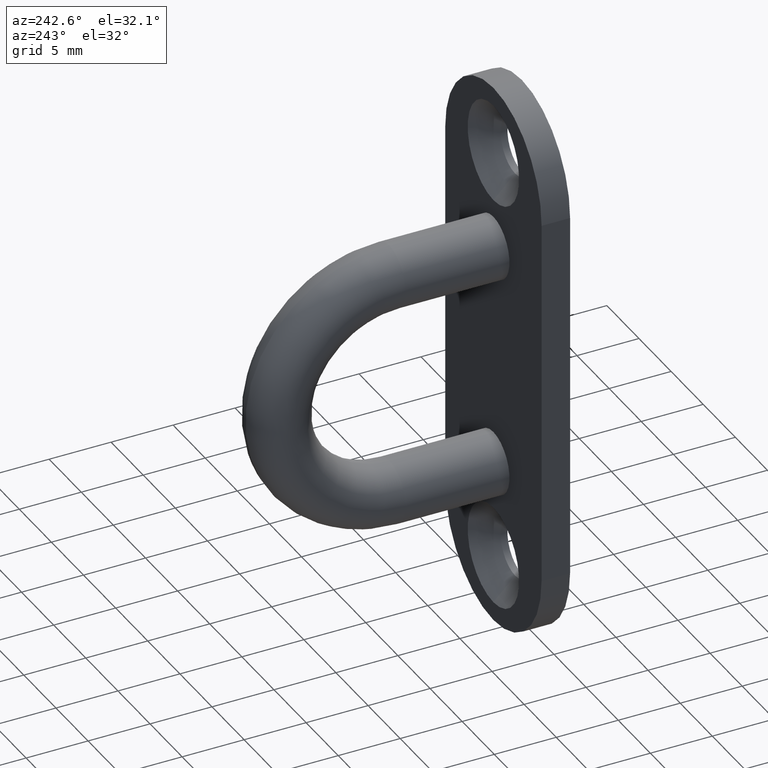
[diagram: clean part render]
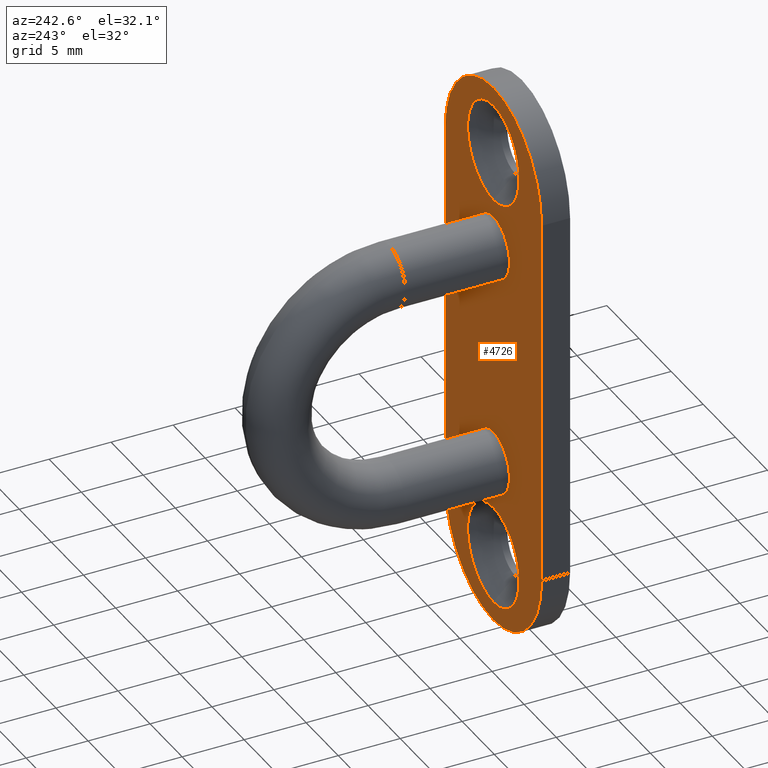
[diagram: same view with one face highlighted and labeled with its STEP entity id]
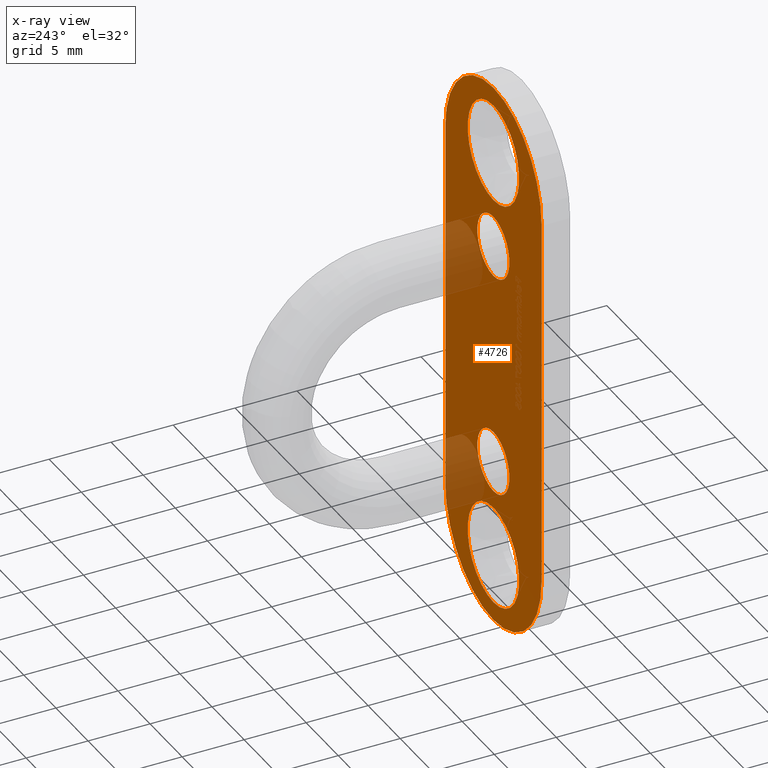
[diagram: x-ray of the same camera — body ghosted, the highlighted face saturated]
A machine part, auxiliary view. The second image highlights one B-rep face of the part: STEP entity #4726.
The next image is the same camera in x-ray: the body ghosted, the highlighted face saturated — about 12% of this face is hidden behind the body in this view.
In plain terms, the highlighted planar face has unit normal (0, 1, 0).
Its self-contained STEP definition (entity closure, byte-faithful):
#55 = DIRECTION ( 'NONE',  ( 0.0000000000000000000, 0.0000000000000000000, 1.000000000000000000 ) ) ;
#189 = VERTEX_POINT ( 'NONE', #12354 ) ;
#214 = CIRCLE ( 'NONE', #2762, 2.500000000000000400 ) ;
#291 = CARTESIAN_POINT ( 'NONE',  ( 6.000769315822030900E-015, 2.299999999999999800, -17.00000000000000000 ) ) ;
#440 = EDGE_CURVE ( 'NONE', #4568, #8157, #9463, .T. ) ;
#457 = ORIENTED_EDGE ( 'NONE', *, *, #6799, .F. ) ;
#523 = VERTEX_POINT ( 'NONE', #9276 ) ;
#596 = CARTESIAN_POINT ( 'NONE',  ( 6.000769315822030900E-015, 2.299999999999999800, -13.00000000000000500 ) ) ;
#644 = AXIS2_PLACEMENT_3D ( 'NONE', #291, #3449, #9608 ) ;
#768 = ORIENTED_EDGE ( 'NONE', *, *, #6832, .T. ) ;
#860 = DIRECTION ( 'NONE',  ( -0.0000000000000000000, -1.000000000000000000, -0.0000000000000000000 ) ) ;
#918 = VERTEX_POINT ( 'NONE', #11177 ) ;
#1264 = DIRECTION ( 'NONE',  ( 0.0000000000000000000, 0.0000000000000000000, 1.000000000000000000 ) ) ;
#1303 = CARTESIAN_POINT ( 'NONE',  ( 0.0000000000000000000, 2.299999999999999800, 9.099999999999999600 ) ) ;
#2199 = EDGE_CURVE ( 'NONE', #523, #9841, #4297, .T. ) ;
#2221 = CARTESIAN_POINT ( 'NONE',  ( 6.490628035480972300E-015, 2.299999999999999800, 13.00000000000000500 ) ) ;
#2252 = CARTESIAN_POINT ( 'NONE',  ( 6.000769315822030900E-015, 2.299999999999999800, 20.99999999999999600 ) ) ;
#2261 = DIRECTION ( 'NONE',  ( 0.0000000000000000000, 0.0000000000000000000, 1.000000000000000000 ) ) ;
#2480 = FACE_BOUND ( 'NONE', #3349, .T. ) ;
#2498 = LINE ( 'NONE', #2669, #13227 ) ;
#2547 = EDGE_CURVE ( 'NONE', #10538, #12911, #10152, .T. ) ;
#2556 = CARTESIAN_POINT ( 'NONE',  ( 6.000769315822030900E-015, 2.299999999999999800, 17.00000000000000000 ) ) ;
#2669 = CARTESIAN_POINT ( 'NONE',  ( -7.500000000000005300, 2.299999999999999800, -15.00000000000000000 ) ) ;
#2677 = CARTESIAN_POINT ( 'NONE',  ( 6.000769315822030900E-015, 2.299999999999999800, -17.00000000000000000 ) ) ;
#2762 = AXIS2_PLACEMENT_3D ( 'NONE', #6742, #8918, #3643 ) ;
#3094 = CIRCLE ( 'NONE', #5917, 7.500000000000010700 ) ;
#3114 = DIRECTION ( 'NONE',  ( 0.0000000000000000000, 1.000000000000000000, 0.0000000000000000000 ) ) ;
#3124 = CARTESIAN_POINT ( 'NONE',  ( -7.500000000000005300, 2.299999999999999800, -15.00000000000000000 ) ) ;
#3212 = CARTESIAN_POINT ( 'NONE',  ( -5.627543624653317000E-015, 2.299999999999999800, 15.00000000000000000 ) ) ;
#3239 = DIRECTION ( 'NONE',  ( 0.0000000000000000000, 1.000000000000000000, 0.0000000000000000000 ) ) ;
#3252 = CIRCLE ( 'NONE', #8418, 3.999999999999996400 ) ;
#3349 = EDGE_LOOP ( 'NONE', ( #11212, #11558 ) ) ;
#3414 = ORIENTED_EDGE ( 'NONE', *, *, #3934, .T. ) ;
#3449 = DIRECTION ( 'NONE',  ( -0.0000000000000000000, -1.000000000000000000, -0.0000000000000000000 ) ) ;
#3526 = AXIS2_PLACEMENT_3D ( 'NONE', #2556, #6640, #10821 ) ;
#3643 = DIRECTION ( 'NONE',  ( 0.0000000000000000000, 0.0000000000000000000, 1.000000000000000000 ) ) ;
#3830 = CARTESIAN_POINT ( 'NONE',  ( 7.500000000000016900, 2.299999999999999800, -14.99999999999999600 ) ) ;
#3934 = EDGE_CURVE ( 'NONE', #8490, #918, #214, .T. ) ;
#4064 = CARTESIAN_POINT ( 'NONE',  ( -7.464513823374346600E-015, 2.299999999999999800, -22.50000000000001400 ) ) ;
#4297 = LINE ( 'NONE', #10300, #8039 ) ;
#4522 = ORIENTED_EDGE ( 'NONE', *, *, #5420, .T. ) ;
#4568 = VERTEX_POINT ( 'NONE', #596 ) ;
#4594 = FACE_BOUND ( 'NONE', #12310, .T. ) ;
#4726 = ADVANCED_FACE ( 'NONE', ( #4594, #2480, #8173, #5729, #10287 ), #10978, .T. ) ;
#5083 = EDGE_CURVE ( 'NONE', #8157, #4568, #10599, .T. ) ;
#5312 = CARTESIAN_POINT ( 'NONE',  ( 0.0000000000000000000, 2.299999999999999800, 9.099999999999999600 ) ) ;
#5393 = CARTESIAN_POINT ( 'NONE',  ( -7.464513823374346600E-015, 2.299999999999999800, -15.00000000000000000 ) ) ;
#5420 = EDGE_CURVE ( 'NONE', #918, #8490, #8012, .T. ) ;
#5560 = CIRCLE ( 'NONE', #7782, 7.500000000000009800 ) ;
#5579 = VERTEX_POINT ( 'NONE', #11659 ) ;
#5593 = EDGE_LOOP ( 'NONE', ( #457, #10687 ) ) ;
#5600 = VERTEX_POINT ( 'NONE', #9614 ) ;
#5696 = AXIS2_PLACEMENT_3D ( 'NONE', #5312, #3239, #2261 ) ;
#5703 = ORIENTED_EDGE ( 'NONE', *, *, #11939, .T. ) ;
#5729 = FACE_BOUND ( 'NONE', #5593, .T. ) ;
#5917 = AXIS2_PLACEMENT_3D ( 'NONE', #8348, #3114, #9481 ) ;
#6389 = DIRECTION ( 'NONE',  ( 0.0000000000000000000, 1.000000000000000000, 0.0000000000000000000 ) ) ;
#6425 = ORIENTED_EDGE ( 'NONE', *, *, #6466, .T. ) ;
#6466 = EDGE_CURVE ( 'NONE', #5600, #523, #5560, .T. ) ;
#6594 = ORIENTED_EDGE ( 'NONE', *, *, #2199, .T. ) ;
#6640 = DIRECTION ( 'NONE',  ( -0.0000000000000000000, -1.000000000000000000, -0.0000000000000000000 ) ) ;
#6742 = CARTESIAN_POINT ( 'NONE',  ( 0.0000000000000000000, 2.299999999999999800, -9.099999999999999600 ) ) ;
#6799 = EDGE_CURVE ( 'NONE', #5579, #189, #8973, .T. ) ;
#6832 = EDGE_CURVE ( 'NONE', #9841, #8299, #7674, .T. ) ;
#6835 = DIRECTION ( 'NONE',  ( 0.0000000000000000000, -0.0000000000000000000, 1.000000000000000000 ) ) ;
#6952 = AXIS2_PLACEMENT_3D ( 'NONE', #12010, #7890, #6835 ) ;
#7072 = ORIENTED_EDGE ( 'NONE', *, *, #12894, .T. ) ;
#7104 = AXIS2_PLACEMENT_3D ( 'NONE', #5393, #7472, #1264 ) ;
#7204 = EDGE_LOOP ( 'NONE', ( #4522, #3414 ) ) ;
#7472 = DIRECTION ( 'NONE',  ( 0.0000000000000000000, 1.000000000000000000, 0.0000000000000000000 ) ) ;
#7482 = DIRECTION ( 'NONE',  ( 0.0000000000000000000, 1.000000000000000000, 0.0000000000000000000 ) ) ;
#7674 = CIRCLE ( 'NONE', #7104, 7.500000000000010700 ) ;
#7782 = AXIS2_PLACEMENT_3D ( 'NONE', #3212, #7482, #9409 ) ;
#7890 = DIRECTION ( 'NONE',  ( 0.0000000000000000000, 1.000000000000000000, 0.0000000000000000000 ) ) ;
#8012 = CIRCLE ( 'NONE', #10573, 2.500000000000000400 ) ;
#8039 = VECTOR ( 'NONE', #10212, 1000.000000000000000 ) ;
#8157 = VERTEX_POINT ( 'NONE', #13489 ) ;
#8173 = FACE_OUTER_BOUND ( 'NONE', #9977, .T. ) ;
#8205 = VERTEX_POINT ( 'NONE', #3124 ) ;
#8244 = CARTESIAN_POINT ( 'NONE',  ( 0.0000000000000000000, 2.299999999999999800, -9.099999999999999600 ) ) ;
#8246 = ORIENTED_EDGE ( 'NONE', *, *, #5083, .T. ) ;
#8299 = VERTEX_POINT ( 'NONE', #4064 ) ;
#8348 = CARTESIAN_POINT ( 'NONE',  ( -7.464513823374346600E-015, 2.299999999999999800, -15.00000000000000000 ) ) ;
#8418 = AXIS2_PLACEMENT_3D ( 'NONE', #9216, #860, #11293 ) ;
#8465 = EDGE_CURVE ( 'NONE', #12911, #10538, #3252, .T. ) ;
#8490 = VERTEX_POINT ( 'NONE', #9076 ) ;
#8610 = EDGE_CURVE ( 'NONE', #189, #5579, #11390, .T. ) ;
#8918 = DIRECTION ( 'NONE',  ( -0.0000000000000000000, -1.000000000000000000, -0.0000000000000000000 ) ) ;
#8973 = CIRCLE ( 'NONE', #5696, 2.500000000000000400 ) ;
#9076 = CARTESIAN_POINT ( 'NONE',  ( 3.061616997868383600E-016, 2.299999999999999800, -6.599999999999999600 ) ) ;
#9216 = CARTESIAN_POINT ( 'NONE',  ( 6.000769315822030900E-015, 2.299999999999999800, 17.00000000000000000 ) ) ;
#9276 = CARTESIAN_POINT ( 'NONE',  ( 7.500000000000016900, 2.299999999999999800, 14.99999999999999600 ) ) ;
#9409 = DIRECTION ( 'NONE',  ( 0.0000000000000000000, 0.0000000000000000000, 1.000000000000000000 ) ) ;
#9463 = CIRCLE ( 'NONE', #11789, 3.999999999999996400 ) ;
#9481 = DIRECTION ( 'NONE',  ( 0.0000000000000000000, 0.0000000000000000000, 1.000000000000000000 ) ) ;
#9608 = DIRECTION ( 'NONE',  ( 0.0000000000000000000, 0.0000000000000000000, 1.000000000000000000 ) ) ;
#9614 = CARTESIAN_POINT ( 'NONE',  ( -7.500000000000016000, 2.299999999999999800, 14.99999999999999800 ) ) ;
#9841 = VERTEX_POINT ( 'NONE', #3830 ) ;
#9977 = EDGE_LOOP ( 'NONE', ( #768, #7072, #5703, #6425, #6594 ) ) ;
#10152 = CIRCLE ( 'NONE', #3526, 3.999999999999996400 ) ;
#10212 = DIRECTION ( 'NONE',  ( -0.0000000000000000000, -0.0000000000000000000, -1.000000000000000000 ) ) ;
#10287 = FACE_BOUND ( 'NONE', #7204, .T. ) ;
#10300 = CARTESIAN_POINT ( 'NONE',  ( 7.500000000000016900, 2.299999999999999800, -14.99999999999999600 ) ) ;
#10422 = DIRECTION ( 'NONE',  ( -0.0000000000000000000, -1.000000000000000000, -0.0000000000000000000 ) ) ;
#10506 = AXIS2_PLACEMENT_3D ( 'NONE', #1303, #6389, #12645 ) ;
#10538 = VERTEX_POINT ( 'NONE', #2252 ) ;
#10573 = AXIS2_PLACEMENT_3D ( 'NONE', #8244, #10422, #55 ) ;
#10599 = CIRCLE ( 'NONE', #644, 3.999999999999996400 ) ;
#10687 = ORIENTED_EDGE ( 'NONE', *, *, #8610, .F. ) ;
#10821 = DIRECTION ( 'NONE',  ( 0.0000000000000000000, 0.0000000000000000000, 1.000000000000000000 ) ) ;
#10978 = PLANE ( 'NONE',  #6952 ) ;
#11177 = CARTESIAN_POINT ( 'NONE',  ( 0.0000000000000000000, 2.299999999999999800, -11.60000000000000100 ) ) ;
#11212 = ORIENTED_EDGE ( 'NONE', *, *, #2547, .T. ) ;
#11293 = DIRECTION ( 'NONE',  ( 0.0000000000000000000, 0.0000000000000000000, 1.000000000000000000 ) ) ;
#11390 = CIRCLE ( 'NONE', #10506, 2.500000000000000400 ) ;
#11558 = ORIENTED_EDGE ( 'NONE', *, *, #8465, .T. ) ;
#11659 = CARTESIAN_POINT ( 'NONE',  ( 0.0000000000000000000, 2.299999999999999800, 6.599999999999999600 ) ) ;
#11789 = AXIS2_PLACEMENT_3D ( 'NONE', #2677, #13121, #13169 ) ;
#11880 = DIRECTION ( 'NONE',  ( 0.0000000000000000000, 0.0000000000000000000, 1.000000000000000000 ) ) ;
#11939 = EDGE_CURVE ( 'NONE', #8205, #5600, #2498, .T. ) ;
#12010 = CARTESIAN_POINT ( 'NONE',  ( -7.464513823374346600E-015, 2.299999999999999800, -15.00000000000000000 ) ) ;
#12310 = EDGE_LOOP ( 'NONE', ( #13024, #8246 ) ) ;
#12354 = CARTESIAN_POINT ( 'NONE',  ( 3.061616997868383600E-016, 2.299999999999999800, 11.60000000000000100 ) ) ;
#12645 = DIRECTION ( 'NONE',  ( 0.0000000000000000000, 0.0000000000000000000, 1.000000000000000000 ) ) ;
#12894 = EDGE_CURVE ( 'NONE', #8299, #8205, #3094, .T. ) ;
#12911 = VERTEX_POINT ( 'NONE', #2221 ) ;
#13024 = ORIENTED_EDGE ( 'NONE', *, *, #440, .T. ) ;
#13121 = DIRECTION ( 'NONE',  ( -0.0000000000000000000, -1.000000000000000000, -0.0000000000000000000 ) ) ;
#13169 = DIRECTION ( 'NONE',  ( 0.0000000000000000000, 0.0000000000000000000, 1.000000000000000000 ) ) ;
#13227 = VECTOR ( 'NONE', #11880, 1000.000000000000000 ) ;
#13489 = CARTESIAN_POINT ( 'NONE',  ( 6.490628035480972300E-015, 2.299999999999999800, -20.99999999999999600 ) ) ;